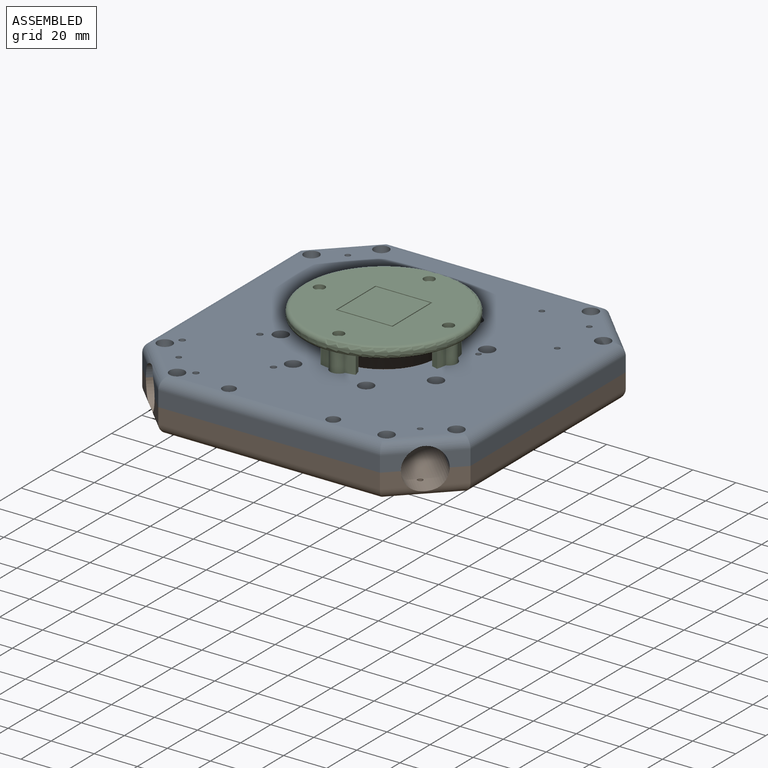
[diagram: assembled view]
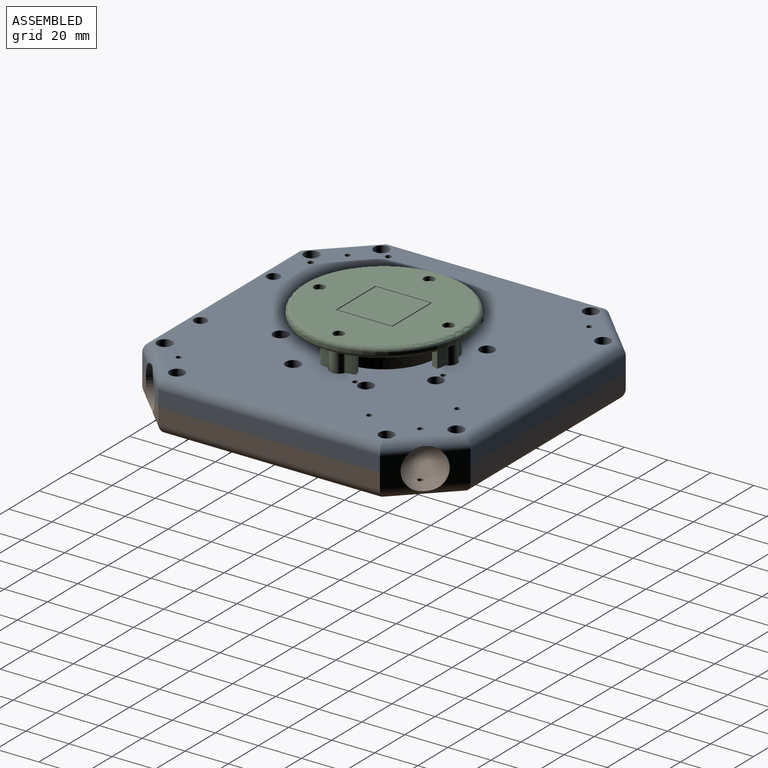
[diagram: assembled view, second angle]
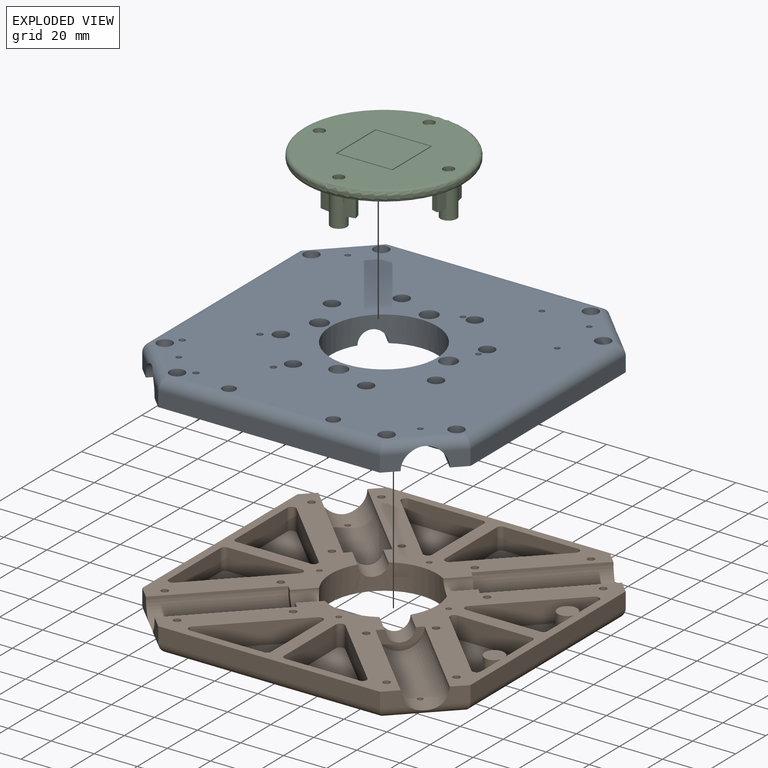
[diagram: exploded view]
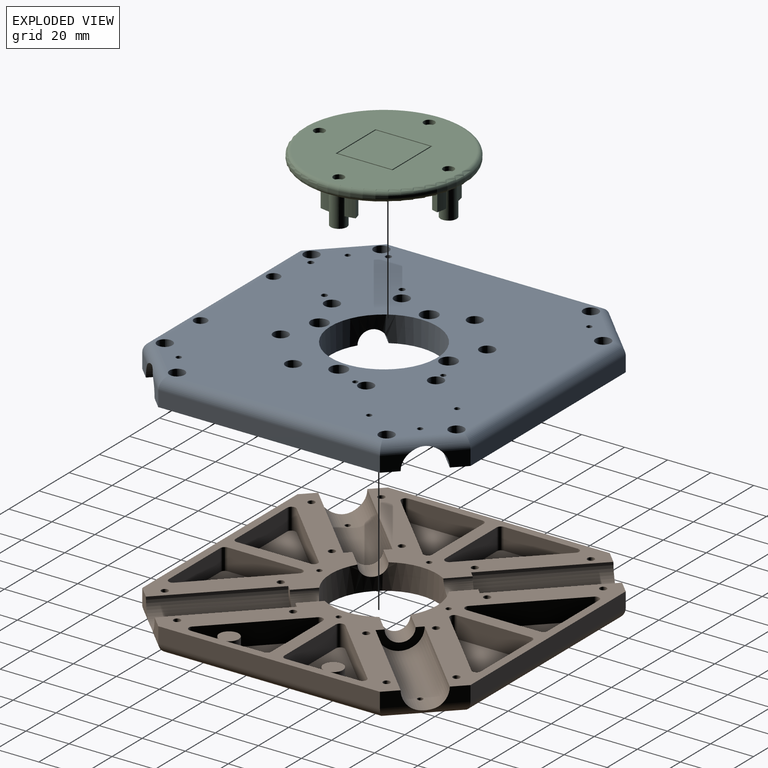
[diagram: exploded view, second angle]
ASSEMBLY  parts=3 mates=4
PART A: 190 faces, bbox 152.5x152.5x12 mm
  f0: plane 114.31x55.03mm, normal (0,0,1), area 2145.7mm2, adj f18,f19,f20,f23,f38,f43,f44,f49
  f1: plane 114.31x55.03mm, normal (0,0,1), area 2271.9mm2, adj f4,f5,f7,f8,f14,f16,f17,f24
  f2: plane 114.31x55.03mm, normal (0,0,1), area 2145.7mm2, adj f13,f21,f22,f26,f35,f39,f45,f49
  f3: plane 142.5x142.5mm, normal (0,0,-1), area 16501.5mm2, adj f46,f47,f48,f49,f50,f60,f61,f62
  f4: plane 17.73x10mm, normal (0,1,0), area 177.3mm2, adj f1,f6,f154,f181
  f5: plane 13.59x10mm, normal (0,1,0), area 135.9mm2, adj f1,f6,f150,f181
  f6: plane 38.29x38.29mm, normal (0,0,1), area 771.3mm2, adj f4,f5,f150,f151,f152,f153,f154,f181
  f7: plane 17.73x10mm, normal (0,1,0), area 177.3mm2, adj f1,f9,f133,f180
  f8: plane 13.59x10mm, normal (0,1,0), area 135.9mm2, adj f1,f9,f132,f180
  f9: plane 38.29x38.29mm, normal (0,0,1), area 771.3mm2, adj f7,f8,f131,f132,f133,f134,f135,f180
  f10: plane 114.31x55.03mm, normal (0,0,1), area 2145.7mm2, adj f11,f12,f15,f25,f36,f41,f49,f51
  f11: cylinder r=1.6mm len=7.5mm, axis (0,0,-1), area 75.4mm2, adj f10,f75
  f12: cylinder r=1.6mm len=7.5mm, axis (0,0,-1), area 75.4mm2, adj f10,f91
  f13: cylinder r=1.6mm len=7.5mm, axis (0,0,-1), area 75.4mm2, adj f2,f70
  f14: cylinder r=1.6mm len=7.5mm, axis (0,0,-1), area 75.4mm2, adj f1,f83
  f15: cylinder r=1.6mm len=7.5mm, axis (0,0,-1), area 75.4mm2, adj f10,f78
  f16: cylinder r=1.6mm len=7.5mm, axis (0,0,-1), area 75.4mm2, adj f1,f97
  f17: cylinder r=1.6mm len=7.5mm, axis (0,0,-1), area 75.4mm2, adj f1,f80
  f18: cylinder r=1.6mm len=7.5mm, axis (0,0,-1), area 75.4mm2, adj f0,f77
  f19: cylinder r=1.6mm len=7.5mm, axis (0,0,-1), area 75.4mm2, adj f0,f89
  f20: cylinder r=1.6mm len=7.5mm, axis (0,0,-1), area 75.4mm2, adj f0,f72
  f21: cylinder r=1.6mm len=7.5mm, axis (0,0,-1), area 75.4mm2, adj f2,f69
  f22: cylinder r=1.6mm len=7.5mm, axis (0,0,-1), area 75.4mm2, adj f2,f85
  f23: cylinder r=1.6mm len=7.5mm, axis (0,0,-1), area 75.4mm2, adj f0,f86
  f24: cylinder r=1.6mm len=7.5mm, axis (0,0,-1), area 75.4mm2, adj f1,f98
  f25: cylinder r=1.6mm len=7.5mm, axis (0,0,-1), area 75.4mm2, adj f10,f94
  f26: cylinder r=1.6mm len=7.5mm, axis (0,0,-1), area 75.4mm2, adj f2,f92
  f27: plane 0.53x0.09mm, normal (0,0,-1), area 0mm2, adj f61,f63,f79
  f28: plane 0.53x0.09mm, normal (0,0,-1), area 0mm2, adj f60,f61,f82
  f29: plane 0.53x0.09mm, normal (0,0,-1), area 0mm2, adj f65,f67,f71
  f30: plane 0.53x0.09mm, normal (0,0,-1), area 0mm2, adj f60,f62,f81
  f31: plane 0.53x0.09mm, normal (0,0,-1), area 0mm2, adj f62,f64,f76
  f32: plane 0.53x0.09mm, normal (0,0,-1), area 0mm2, adj f64,f66,f73
  f33: plane 0.53x0.09mm, normal (0,0,-1), area 0mm2, adj f66,f67,f68
  f34: plane 0.53x0.09mm, normal (0,0,-1), area 0mm2, adj f63,f65,f74
  f35: plane 7.83x7.83mm, normal (-0.71,0.71,0), area 62.6mm2, adj f2,f45,f56,f65
  f36: plane 7.83x7.83mm, normal (-0.71,-0.71,0), area 62.6mm2, adj f10,f41,f54,f61
  f37: plane 7.83x7.83mm, normal (0.71,-0.71,0), area 62.6mm2, adj f1,f42,f52,f62
  f38: plane 7.83x7.83mm, normal (0.71,0.71,0), area 62.6mm2, adj f0,f44,f58,f66
  f39: plane 7.83x7.83mm, normal (0.71,0.71,0), area 62.6mm2, adj f2,f45,f58,f66
  f40: plane 7.83x7.83mm, normal (-0.71,-0.71,0), area 62.6mm2, adj f1,f42,f54,f61
  f41: plane 103x7mm, normal (-1,0,0), area 721mm2, adj f10,f36,f51,f63
  f42: plane 103x7mm, normal (0,-1,0), area 721mm2, adj f1,f37,f40,f60
  f43: plane 7.83x7.83mm, normal (0.71,-0.71,0), area 62.6mm2, adj f0,f44,f52,f62
  f44: plane 103x7mm, normal (1,0,0), area 721mm2, adj f0,f38,f43,f64
  f45: plane 103x7mm, normal (0,1,0), area 721mm2, adj f2,f35,f39,f67
  f46: cylinder r=1.25mm len=2.54mm, axis (0,0,-1), area 20mm2, adj f3,f56
  f47: cylinder r=1.25mm len=2.54mm, axis (0,0,-1), area 20mm2, adj f3,f58
  f48: cylinder r=1.25mm len=2.54mm, axis (0,0,-1), area 20mm2, adj f3,f52
  f49: cylinder r=24.75mm len=49.5mm, axis (0,0,-1), area 1638.1mm2, adj f0,f1,f2,f3,f10,f186,f187,f188
  f50: cylinder r=1.25mm len=2.54mm, axis (0,0,-1), area 20mm2, adj f3,f54
  f51: plane 7.83x7.83mm, normal (-0.71,0.71,0), area 62.6mm2, adj f10,f41,f56,f65
  f52: cylinder r=9.5mm len=52.33mm, axis (0.71,-0.71,0), area 1631.7mm2, adj f0,f1,f37,f43,f48,f53,f62
  f53: plane 13.44x13.44mm, normal (0.71,-0.71,0), area 85.2mm2, adj f0,f1,f52,f188
  f54: cylinder r=9.5mm len=52.33mm, axis (-0.71,-0.71,0), area 1631.7mm2, adj f1,f10,f36,f40,f50,f55,f61
  f55: plane 13.44x13.44mm, normal (-0.71,-0.71,0), area 85.2mm2, adj f1,f10,f54,f186
  f56: cylinder r=9.5mm len=52.33mm, axis (-0.71,0.71,0), area 1631.7mm2, adj f2,f10,f35,f46,f51,f57,f65
  f57: plane 13.44x13.44mm, normal (-0.71,0.71,0), area 85.2mm2, adj f2,f10,f56,f187
  f58: cylinder r=9.5mm len=52.33mm, axis (0.71,0.71,0), area 1631.7mm2, adj f0,f2,f38,f39,f47,f59,f66
  f59: plane 13.44x13.44mm, normal (0.71,0.71,0), area 85.2mm2, adj f0,f2,f58,f189
  f60: cylinder r=5mm len=103mm, axis (1,0,0), area 797.1mm2, adj f3,f28,f30,f42,f61,f62,f81,f82
  f61: cylinder r=5mm len=28.28mm, axis (0.71,-0.71,0), area 237.9mm2, adj f3,f27,f28,f36,f40,f54,f60,f63
  f62: cylinder r=5mm len=28.28mm, axis (0.71,0.71,0), area 237.9mm2, adj f3,f30,f31,f37,f43,f52,f60,f64
  f63: cylinder r=5mm len=103mm, axis (0,-1,0), area 797.1mm2, adj f3,f27,f34,f41,f61,f65,f74,f79
  f64: cylinder r=5mm len=103mm, axis (0,1,0), area 797.1mm2, adj f3,f31,f32,f44,f62,f66,f73,f76
  f65: cylinder r=5mm len=28.28mm, axis (-0.71,-0.71,0), area 237.9mm2, adj f3,f29,f34,f35,f51,f56,f63,f67
  f66: cylinder r=5mm len=28.28mm, axis (-0.71,0.71,0), area 237.9mm2, adj f3,f32,f33,f38,f39,f58,f64,f67
  f67: cylinder r=5mm len=103mm, axis (-1,0,0), area 797.1mm2, adj f3,f29,f33,f45,f65,f66,f68,f71
  f68: cylinder r=3.5mm len=7mm, axis (0,0,-1), area 99mm2, adj f3,f33,f66,f67,f69
  f69: plane 7x7mm, normal (0,0,-1), area 30.4mm2, adj f21,f68
  f70: plane 7x7mm, normal (0,0,-1), area 30.4mm2, adj f13,f71
  f71: cylinder r=3.5mm len=7mm, axis (0,0,-1), area 99mm2, adj f3,f29,f65,f67,f70
  f72: plane 7x7mm, normal (0,0,-1), area 30.4mm2, adj f20,f73
  f73: cylinder r=3.5mm len=7mm, axis (0,0,-1), area 99mm2, adj f3,f32,f64,f66,f72
  f74: cylinder r=3.5mm len=7mm, axis (0,0,-1), area 99mm2, adj f3,f34,f63,f65,f75
  f75: plane 7x7mm, normal (0,0,-1), area 30.4mm2, adj f11,f74
  f76: cylinder r=3.5mm len=7mm, axis (0,0,-1), area 99mm2, adj f3,f31,f62,f64,f77
  f77: plane 7x7mm, normal (0,0,-1), area 30.4mm2, adj f18,f76
  f78: plane 7x7mm, normal (0,0,-1), area 30.4mm2, adj f15,f79
  f79: cylinder r=3.5mm len=7mm, axis (0,0,-1), area 99mm2, adj f3,f27,f61,f63,f78
  f80: plane 7x7mm, normal (0,0,-1), area 30.4mm2, adj f17,f81
  f81: cylinder r=3.5mm len=7mm, axis (0,0,-1), area 99mm2, adj f3,f30,f60,f62,f80
  f82: cylinder r=3.5mm len=7mm, axis (0,0,-1), area 99mm2, adj f3,f28,f60,f61,f83
  f83: plane 7x7mm, normal (0,0,-1), area 30.4mm2, adj f14,f82
  f84: cylinder r=3.5mm len=7mm, axis (0,0,-1), area 99mm2, adj f3,f85
  f85: plane 7x7mm, normal (0,0,-1), area 30.4mm2, adj f22,f84
  f86: plane 7x7mm, normal (0,0,-1), area 30.4mm2, adj f23,f87
  f87: cylinder r=3.5mm len=7mm, axis (0,0,-1), area 99mm2, adj f3,f86
  f88: cylinder r=3.5mm len=7mm, axis (0,0,-1), area 99mm2, adj f3,f89
  f89: plane 7x7mm, normal (0,0,-1), area 30.4mm2, adj f19,f88
  f90: cylinder r=3.5mm len=7mm, axis (0,0,-1), area 99mm2, adj f3,f91
  f91: plane 7x7mm, normal (0,0,-1), area 30.4mm2, adj f12,f90
  f92: plane 7x7mm, normal (0,0,-1), area 30.4mm2, adj f26,f93
  f93: cylinder r=3.5mm len=7mm, axis (0,0,-1), area 99mm2, adj f3,f92
  f94: plane 7x7mm, normal (0,0,-1), area 30.4mm2, adj f25,f95
  f95: cylinder r=3.5mm len=7mm, axis (0,0,-1), area 99mm2, adj f3,f94
  f96: cylinder r=3.5mm len=7mm, axis (0,0,-1), area 99mm2, adj f3,f97
  f97: plane 7x7mm, normal (0,0,-1), area 30.4mm2, adj f16,f96
  f98: plane 7x7mm, normal (0,0,-1), area 30.4mm2, adj f24,f99
  f99: cylinder r=3.5mm len=7mm, axis (0,0,-1), area 99mm2, adj f3,f98
  f100: cylinder r=4mm len=8mm, axis (0,0,-1), area 125.7mm2, adj f3,f101
  f101: plane 8x8mm, normal (0,0,-1), area 45.4mm2, adj f100,f179
  f102: cylinder r=4mm len=8mm, axis (0,0,-1), area 125.7mm2, adj f3,f103
  f103: plane 8x8mm, normal (0,0,-1), area 45.4mm2, adj f102,f178
  f104: cylinder r=4mm len=8mm, axis (0,0,-1), area 125.7mm2, adj f3,f105
  f105: plane 8x8mm, normal (0,0,-1), area 45.4mm2, adj f104,f177
  f106: cylinder r=4mm len=8mm, axis (0,0,-1), area 125.7mm2, adj f3,f107
  f107: plane 8x8mm, normal (0,0,-1), area 45.4mm2, adj f106,f176
  f108: cylinder r=1.25mm len=8mm, axis (0,0,-1), area 62.8mm2, adj f3,f109
  f109: plane 2.5x2.5mm, normal (0,0,-1), area 4.9mm2, adj f108
  f110: cylinder r=1.25mm len=8mm, axis (0,0,-1), area 62.8mm2, adj f3,f111
  f111: plane 2.5x2.5mm, normal (0,0,-1), area 4.9mm2, adj f110
  f112: cylinder r=1.25mm len=8mm, axis (0,0,-1), area 62.8mm2, adj f3,f113
  f113: plane 2.5x2.5mm, normal (0,0,-1), area 4.9mm2, adj f112
  f114: cylinder r=1.25mm len=8mm, axis (0,0,-1), area 62.8mm2, adj f3,f115
  f115: plane 2.5x2.5mm, normal (0,0,-1), area 4.9mm2, adj f114
  f116: cylinder r=1.4mm len=8mm, axis (0,0,-1), area 70.4mm2, adj f3,f117
  f117: plane 2.8x2.8mm, normal (0,0,-1), area 6.2mm2, adj f116
  f118: cylinder r=1.4mm len=8mm, axis (0,0,-1), area 70.4mm2, adj f3,f119
  f119: plane 2.8x2.8mm, normal (0,0,-1), area 6.2mm2, adj f118
  f120: cylinder r=1.4mm len=8mm, axis (0,0,-1), area 70.4mm2, adj f3,f121
  f121: plane 2.8x2.8mm, normal (0,0,-1), area 6.2mm2, adj f120
  f122: cylinder r=1.4mm len=8mm, axis (0,0,-1), area 70.4mm2, adj f3,f123
  f123: plane 2.8x2.8mm, normal (0,0,-1), area 6.2mm2, adj f122
  f124: plane 34.29x10mm, normal (0,1,0), area 342.9mm2, adj f10,f125,f129,f130
  f125: cylinder r=2mm len=10mm, axis (0,0,1), area 47.1mm2, adj f10,f124,f126,f130
  f126: plane 34.29x34.29mm, normal (-0.71,-0.71,0), area 484.9mm2, adj f10,f125,f127,f130
  f127: cylinder r=2mm len=10mm, axis (0,0,1), area 47.1mm2, adj f10,f126,f128,f130
  f128: plane 34.29x10mm, normal (1,0,0), area 342.9mm2, adj f10,f127,f129,f130
  f129: cylinder r=2mm len=10mm, axis (0,0,1), area 31.4mm2, adj f10,f124,f128,f130
  f130: plane 38.29x38.29mm, normal (0,0,1), area 834.4mm2, adj f124,f125,f126,f127,f128,f129
  f131: plane 34.29x34.29mm, normal (0.71,-0.71,0), area 484.9mm2, adj f1,f9,f132,f135
  f132: cylinder r=2mm len=10mm, axis (0,0,1), area 47.1mm2, adj f1,f8,f9,f131
  f133: cylinder r=2mm len=10mm, axis (0,0,1), area 31.4mm2, adj f1,f7,f9,f134
  f134: plane 34.29x10mm, normal (-1,0,0), area 342.9mm2, adj f1,f9,f133,f135
  f135: cylinder r=2mm len=10mm, axis (0,0,1), area 47.1mm2, adj f1,f9,f131,f134
  f136: cylinder r=2mm len=10mm, axis (0,0,1), area 31.4mm2, adj f10,f137,f141,f142
  f137: plane 34.29x10mm, normal (1,0,0), area 342.9mm2, adj f10,f136,f138,f142
  f138: cylinder r=2mm len=10mm, axis (0,0,1), area 47.1mm2, adj f10,f137,f139,f142
  f139: plane 34.29x34.29mm, normal (-0.71,0.71,0), area 484.9mm2, adj f10,f138,f140,f142
  f140: cylinder r=2mm len=10mm, axis (0,0,1), area 47.1mm2, adj f10,f139,f141,f142
  f141: plane 34.29x10mm, normal (0,-1,0), area 342.9mm2, adj f10,f136,f140,f142
  f142: plane 38.29x38.29mm, normal (0,0,1), area 834.4mm2, adj f136,f137,f138,f139,f140,f141
  f143: plane 34.29x34.29mm, normal (0.71,0.71,0), area 484.9mm2, adj f0,f144,f148,f149
  f144: cylinder r=2mm len=10mm, axis (0,0,1), area 47.1mm2, adj f0,f143,f145,f149
  f145: plane 34.29x10mm, normal (-1,0,0), area 342.9mm2, adj f0,f144,f146,f149
  f146: cylinder r=2mm len=10mm, axis (0,0,1), area 31.4mm2, adj f0,f145,f147,f149
  f147: plane 34.29x10mm, normal (0,-1,0), area 342.9mm2, adj f0,f146,f148,f149
  f148: cylinder r=2mm len=10mm, axis (0,0,1), area 47.1mm2, adj f0,f143,f147,f149
  f149: plane 38.29x38.29mm, normal (0,0,1), area 834.4mm2, adj f143,f144,f145,f146,f147,f148
  f150: cylinder r=2mm len=10mm, axis (0,0,1), area 47.1mm2, adj f1,f5,f6,f151
  f151: plane 34.29x34.29mm, normal (-0.71,-0.71,0), area 484.9mm2, adj f1,f6,f150,f152
  f152: cylinder r=2mm len=10mm, axis (0,0,1), area 47.1mm2, adj f1,f6,f151,f153
  f153: plane 34.29x10mm, normal (1,0,0), area 342.9mm2, adj f1,f6,f152,f154
  f154: cylinder r=2mm len=10mm, axis (0,0,1), area 31.4mm2, adj f1,f4,f6,f153
  f155: plane 34.29x34.29mm, normal (-0.71,0.71,0), area 484.9mm2, adj f2,f156,f160,f161
  f156: cylinder r=2mm len=10mm, axis (0,0,1), area 47.1mm2, adj f2,f155,f157,f161
  f157: plane 34.29x10mm, normal (0,-1,0), area 342.9mm2, adj f2,f156,f158,f161
  f158: cylinder r=2mm len=10mm, axis (0,0,1), area 31.4mm2, adj f2,f157,f159,f161
  f159: plane 34.29x10mm, normal (1,0,0), area 342.9mm2, adj f2,f158,f160,f161
  f160: cylinder r=2mm len=10mm, axis (0,0,1), area 47.1mm2, adj f2,f155,f159,f161
  f161: plane 38.29x38.29mm, normal (0,0,1), area 834.4mm2, adj f155,f156,f157,f158,f159,f160
  f162: cylinder r=2mm len=10mm, axis (0,0,1), area 47.1mm2, adj f0,f163,f167,f168
  f163: plane 34.29x34.29mm, normal (0.71,-0.71,0), area 484.9mm2, adj f0,f162,f164,f168
  f164: cylinder r=2mm len=10mm, axis (0,0,1), area 47.1mm2, adj f0,f163,f165,f168
  f165: plane 34.29x10mm, normal (0,1,0), area 342.9mm2, adj f0,f164,f166,f168
  f166: cylinder r=2mm len=10mm, axis (0,0,1), area 31.4mm2, adj f0,f165,f167,f168
  f167: plane 34.29x10mm, normal (-1,0,0), area 342.9mm2, adj f0,f162,f166,f168
  f168: plane 38.29x38.29mm, normal (0,0,1), area 834.4mm2, adj f162,f163,f164,f165,f166,f167
  f169: cylinder r=2mm len=10mm, axis (0,0,1), area 47.1mm2, adj f2,f170,f174,f175
  f170: plane 34.29x34.29mm, normal (0.71,0.71,0), area 484.9mm2, adj f2,f169,f171,f175
  f171: cylinder r=2mm len=10mm, axis (0,0,1), area 47.1mm2, adj f2,f170,f172,f175
  f172: plane 34.29x10mm, normal (-1,0,0), area 342.9mm2, adj f2,f171,f173,f175
  f173: cylinder r=2mm len=10mm, axis (0,0,1), area 31.4mm2, adj f2,f172,f174,f175
  f174: plane 34.29x10mm, normal (0,-1,0), area 342.9mm2, adj f2,f169,f173,f175
  f175: plane 38.29x38.29mm, normal (0,0,1), area 834.4mm2, adj f169,f170,f171,f172,f173,f174
  f176: cylinder r=1.25mm len=7mm, axis (0,0,-1), area 55mm2, adj f10,f107
  f177: cylinder r=1.25mm len=7mm, axis (0,0,-1), area 55mm2, adj f1,f105
  f178: cylinder r=1.25mm len=7mm, axis (0,0,-1), area 55mm2, adj f0,f103
  f179: cylinder r=1.25mm len=7mm, axis (0,0,-1), area 55mm2, adj f2,f101
  f180: cylinder r=4.5mm len=10mm, axis (0,0,-1), area 252.5mm2, adj f1,f7,f8,f9
  f181: cylinder r=4.5mm len=10mm, axis (0,0,-1), area 252.5mm2, adj f1,f4,f5,f6
  f182: cylinder r=3mm len=10mm, axis (0,0,-1), area 188.5mm2, adj f3,f183
  f183: plane 6x6mm, normal (0,0,-1), area 28.3mm2, adj f182
  f184: cylinder r=3mm len=10mm, axis (0,0,-1), area 188.5mm2, adj f3,f185
  f185: plane 6x6mm, normal (0,0,-1), area 28.3mm2, adj f184
  f186: cylinder r=6mm len=16.49mm, axis (-0.71,-0.71,0), area 206.4mm2, adj f1,f10,f49,f55
  f187: cylinder r=6mm len=16.49mm, axis (-0.71,0.71,0), area 206.4mm2, adj f2,f10,f49,f57
  f188: cylinder r=6mm len=16.49mm, axis (0.71,-0.71,0), area 206.4mm2, adj f0,f1,f49,f53
  f189: cylinder r=6mm len=16.49mm, axis (0.71,0.71,0), area 206.4mm2, adj f0,f2,f49,f59
PART B: same geometry as A
PART C: 76 faces, bbox 81.2x81.2x20 mm
  f0: cylinder r=1.6mm len=18mm, axis (0,0,-1), area 181mm2, adj f14,f74
  f1: cylinder r=1.6mm len=18mm, axis (0,0,-1), area 181mm2, adj f13,f72
  f2: cylinder r=1.6mm len=18mm, axis (0,0,-1), area 181mm2, adj f12,f70
  f3: cylinder r=1.6mm len=18mm, axis (0,0,-1), area 181mm2, adj f11,f68
  f4: plane 71x71mm, normal (0,0,-1), area 3401mm2, adj f5,f6,f8,f9,f16,f17,f18,f20
  f5: cylinder r=3.75mm len=15mm, axis (0,0,1), area 277.8mm2, adj f4,f14,f23,f24,f25,f27,f28,f29
  f6: cylinder r=3.75mm len=15mm, axis (0,0,1), area 277.4mm2, adj f4,f11,f15,f16,f17,f19,f20,f22
  f7: plane 71x71mm, normal (0,0,1), area 3183.7mm2, adj f47,f48,f49,f54,f58,f69,f71,f73
  f8: cylinder r=3.75mm len=15mm, axis (0,0,1), area 277.8mm2, adj f4,f12,f39,f40,f41,f43,f45,f46
  f9: cylinder r=3.75mm len=15mm, axis (0,0,1), area 277.4mm2, adj f4,f13,f31,f32,f33,f35,f36,f37
  f10: cylinder r=37.5mm len=75mm, axis (0,0,-1), area 235.6mm2, adj f57,f58
  f11: plane 7.5x7.5mm, normal (0,0,-1), area 36.1mm2, adj f3,f6
  f12: plane 7.5x7.5mm, normal (0,0,-1), area 36.1mm2, adj f2,f8
  f13: plane 7.5x7.5mm, normal (0,0,-1), area 36.1mm2, adj f1,f9
  f14: plane 7.5x7.5mm, normal (0,0,-1), area 36.1mm2, adj f0,f5
  f15: plane 4.81x3.77mm, normal (0,0,-1), area 12.6mm2, adj f6,f16,f17,f18
  f16: cylinder r=31.5mm len=10mm, axis (0,0,1), area 47.2mm2, adj f4,f6,f15,f18
  f17: cylinder r=28.5mm len=10mm, axis (0,0,1), area 41.1mm2, adj f4,f6,f15,f18
  f18: plane 10x2.9mm, normal (0.26,0.97,0), area 30mm2, adj f4,f15,f16,f17
  f19: plane 4.81x3.77mm, normal (0,0,-1), area 12.6mm2, adj f6,f20,f21,f22
  f20: cylinder r=28.5mm len=10mm, axis (0,0,1), area 41.1mm2, adj f4,f6,f19,f21
  f21: plane 10x2.9mm, normal (0.26,-0.97,0), area 30mm2, adj f4,f19,f20,f22
  f22: cylinder r=31.5mm len=10mm, axis (0,0,1), area 47.2mm2, adj f4,f6,f19,f21
  f23: plane 4.81x3.77mm, normal (0,0,-1), area 12.6mm2, adj f5,f24,f25,f26
  f24: cylinder r=28.5mm len=10mm, axis (0,0,1), area 41.1mm2, adj f4,f5,f23,f26
  f25: cylinder r=31.5mm len=10mm, axis (0,0,1), area 47.2mm2, adj f4,f5,f23,f26
  f26: plane 10x2.9mm, normal (-0.97,-0.26,0), area 30mm2, adj f4,f23,f24,f25
  f27: cylinder r=31.5mm len=10mm, axis (0,0,1), area 47.2mm2, adj f4,f5,f29,f30
  f28: cylinder r=28.5mm len=10mm, axis (0,0,1), area 41.1mm2, adj f4,f5,f29,f30
  f29: plane 4.81x3.77mm, normal (0,0,-1), area 12.6mm2, adj f5,f27,f28,f30
  f30: plane 10x2.9mm, normal (0.97,-0.26,0), area 30mm2, adj f4,f27,f28,f29
  f31: plane 4.81x3.77mm, normal (0,0,-1), area 12.6mm2, adj f9,f32,f33,f34
  f32: cylinder r=28.5mm len=10mm, axis (0,0,1), area 41.1mm2, adj f4,f9,f31,f34
  f33: cylinder r=31.5mm len=10mm, axis (0,0,1), area 47.2mm2, adj f4,f9,f31,f34
  f34: plane 10x2.9mm, normal (-0.26,0.97,0), area 30mm2, adj f4,f31,f32,f33
  f35: cylinder r=31.5mm len=10mm, axis (0,0,1), area 47.2mm2, adj f4,f9,f37,f38
  f36: cylinder r=28.5mm len=10mm, axis (0,0,1), area 41.1mm2, adj f4,f9,f37,f38
  f37: plane 4.81x3.77mm, normal (0,0,-1), area 12.6mm2, adj f9,f35,f36,f38
  f38: plane 10x2.9mm, normal (-0.26,-0.97,0), area 30mm2, adj f4,f35,f36,f37
  f39: plane 4.81x3.77mm, normal (0,0,-1), area 12.6mm2, adj f8,f40,f41,f42
  f40: cylinder r=28.5mm len=10mm, axis (0,0,1), area 41.1mm2, adj f4,f8,f39,f42
  f41: cylinder r=31.5mm len=10mm, axis (0,0,1), area 47.2mm2, adj f4,f8,f39,f42
  f42: plane 10x2.9mm, normal (-0.97,0.26,0), area 30mm2, adj f4,f39,f40,f41
  f43: plane 4.81x3.77mm, normal (0,0,-1), area 12.6mm2, adj f8,f44,f45,f46
  f44: plane 10x2.9mm, normal (0.97,0.26,0), area 30mm2, adj f4,f43,f45,f46
  f45: cylinder r=31.5mm len=10mm, axis (0,0,1), area 47.2mm2, adj f4,f8,f43,f44
  f46: cylinder r=28.5mm len=10mm, axis (0,0,1), area 41.1mm2, adj f4,f8,f43,f44
  f47: plane 26.4x0.5mm, normal (0,-1,0), area 13.2mm2, adj f7,f48,f54,f55
  f48: plane 26.4x0.5mm, normal (1,0,0), area 13.2mm2, adj f7,f47,f49,f55
  f49: plane 26.4x0.5mm, normal (0,1,0), area 13.2mm2, adj f7,f48,f54,f55
  f50: plane 25.4x0.5mm, normal (-1,0,0), area 12.7mm2, adj f51,f53,f55,f56
  f51: plane 25.4x0.5mm, normal (0,1,0), area 12.7mm2, adj f50,f52,f55,f56
  f52: plane 25.4x0.5mm, normal (1,0,0), area 12.7mm2, adj f51,f53,f55,f56
  f53: plane 25.4x0.5mm, normal (0,-1,0), area 12.7mm2, adj f50,f52,f55,f56
  f54: plane 26.4x0.5mm, normal (-1,0,0), area 13.2mm2, adj f7,f47,f49,f55
  f55: plane 26.4x26.4mm, normal (0,0,1), area 51.8mm2, adj f47,f48,f49,f50,f51,f52,f53,f54
  f56: plane 25.4x25.4mm, normal (0,0,1), area 645.2mm2, adj f50,f51,f52,f53
  f57: torus R=35.5mm, axis (0,0,1), area 725.9mm2, adj f4,f10
  f58: torus R=35.5mm, axis (0,0,1), area 725.9mm2, adj f7,f10
  f59: plane 25.17x5mm, normal (0,-1,0), area 125.8mm2, adj f4,f9,f60,f67
  f60: plane 25.11x5mm, normal (1,0,0), area 125.6mm2, adj f4,f8,f59,f67
  f61: plane 25.11x5mm, normal (-1,0,0), area 125.6mm2, adj f4,f8,f62,f67
  f62: plane 25.17x5mm, normal (0,-1,0), area 125.8mm2, adj f4,f6,f61,f67
  f63: plane 25.17x5mm, normal (0,1,0), area 125.8mm2, adj f4,f6,f64,f67
  f64: plane 25.11x5mm, normal (-1,0,0), area 125.6mm2, adj f4,f5,f63,f67
  f65: plane 25.11x5mm, normal (1,0,0), area 125.6mm2, adj f4,f5,f66,f67
  f66: plane 25.17x5mm, normal (0,1,0), area 125.8mm2, adj f4,f9,f65,f67
  f67: plane 53.03x53mm, normal (0,0,-1), area 280.5mm2, adj f5,f6,f8,f9,f59,f60,f61,f62
  f68: plane 5x5mm, normal (0,0,1), area 11.6mm2, adj f3,f69
  f69: cylinder r=2.5mm len=5mm, axis (0,0,1), area 31.4mm2, adj f7,f68
  f70: plane 5x5mm, normal (0,0,1), area 11.6mm2, adj f2,f71
  f71: cylinder r=2.5mm len=5mm, axis (0,0,1), area 31.4mm2, adj f7,f70
  f72: plane 5x5mm, normal (0,0,1), area 11.6mm2, adj f1,f73
  f73: cylinder r=2.5mm len=5mm, axis (0,0,1), area 31.4mm2, adj f7,f72
  f74: plane 5x5mm, normal (0,0,1), area 11.6mm2, adj f0,f75
  f75: cylinder r=2.5mm len=5mm, axis (0,0,1), area 31.4mm2, adj f7,f74
PLACE A rot(axis=(0,1,0),180deg) t=(44.42,-162.58,-4.48)mm
PLACE B rot(axis=(0,0,1),90deg) t=(44.42,-162.58,-28.48)mm
PLACE C t=(44.42,-162.58,5.52)mm
MATE cylindrical A.f104 <-> C.f8  axis (0,0,1) through (44.42,-192.58,-4.48)mm
MATE planar C.f31 <-> A.f27  axis (0,0,-1) through (71.95,-155.21,-4.48)mm
MATE planar B.f10 <-> A.f10  axis (0,0,1) through (44.42,-215.38,-16.48)mm
MATE fastened B.f14 <-> A.f15  axis (0,0,1) through (112.18,-211.25,-16.48)mm
